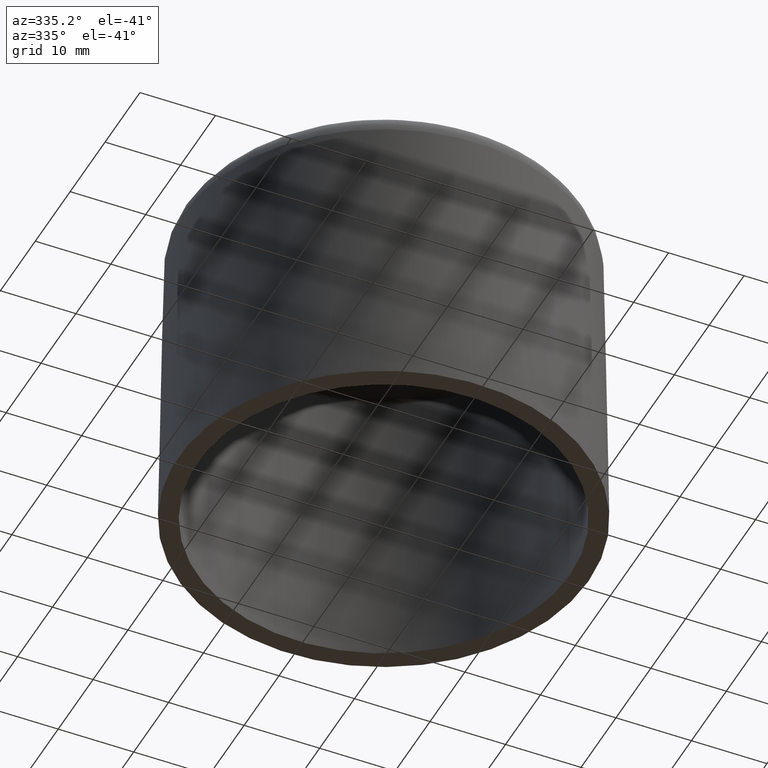
[diagram: clean part render]
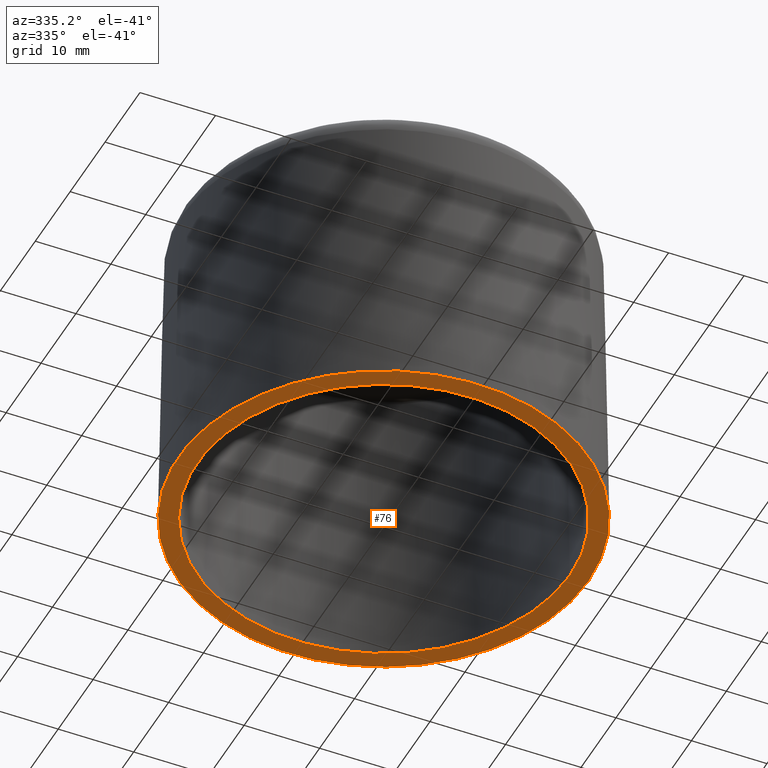
[diagram: same view with one face highlighted and labeled with its STEP entity id]
A machine part, auxiliary view. The second image highlights one B-rep face of the part: STEP entity #76.
In plain terms, the highlighted planar face has unit normal (-0, 0, 1).
Its self-contained STEP definition (entity closure, byte-faithful):
#76 = ADVANCED_FACE( '', ( #161, #162 ), #163, .F. );
#161 = FACE_OUTER_BOUND( '', #330, .T. );
#162 = FACE_BOUND( '', #331, .T. );
#163 = PLANE( '', #332 );
#330 = EDGE_LOOP( '', ( #550 ) );
#331 = EDGE_LOOP( '', ( #551 ) );
#332 = AXIS2_PLACEMENT_3D( '', #552, #553, #554 );
#550 = ORIENTED_EDGE( '', *, *, #1210, .F. );
#551 = ORIENTED_EDGE( '', *, *, #1211, .T. );
#552 = CARTESIAN_POINT( '', ( 6.37306017241811E-031, 24.6491012985644, -1.04083408558608E-014 ) );
#553 = DIRECTION( '', ( -6.12303176911189E-017, 0.000000000000000, 1.00000000000000 ) );
#554 = DIRECTION( '', ( 1.00000000000000, 0.000000000000000, 6.12303176911189E-017 ) );
#1210 = EDGE_CURVE( '', #1423, #1423, #1424, .T. );
#1211 = EDGE_CURVE( '', #1425, #1425, #1426, .T. );
#1423 = VERTEX_POINT( '', #1830 );
#1424 = CIRCLE( '', #1831, 27.1494821186741 );
#1425 = VERTEX_POINT( '', #1832 );
#1426 = CIRCLE( '', #1833, 24.6491012985644 );
#1830 = CARTESIAN_POINT( '', ( 27.1494821186741, 0.000000000000000, 1.66237141527577E-015 ) );
#1831 = AXIS2_PLACEMENT_3D( '', #2350, #2351, #2352 );
#1832 = CARTESIAN_POINT( '', ( 24.6491012985644, 0.000000000000000, -1.93074094084100E-014 ) );
#1833 = AXIS2_PLACEMENT_3D( '', #2353, #2354, #2355 );
#2350 = CARTESIAN_POINT( '', ( 0.000000000000000, 0.000000000000000, 0.000000000000000 ) );
#2351 = DIRECTION( '', ( -6.12303176911189E-017, 0.000000000000000, 1.00000000000000 ) );
#2352 = DIRECTION( '', ( 1.00000000000000, 0.000000000000000, 6.12303176911189E-017 ) );
#2353 = CARTESIAN_POINT( '', ( 1.27461203448362E-030, 0.000000000000000, -2.08166817117217E-014 ) );
#2354 = DIRECTION( '', ( -6.12303176911189E-017, 0.000000000000000, 1.00000000000000 ) );
#2355 = DIRECTION( '', ( 1.00000000000000, 0.000000000000000, 6.12303176911189E-017 ) );